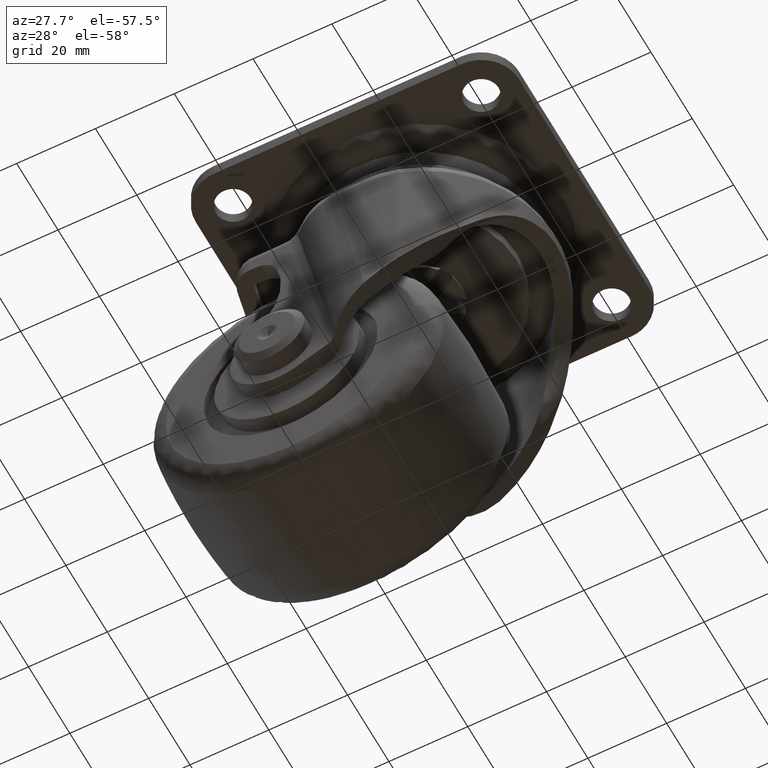
[diagram: clean part render]
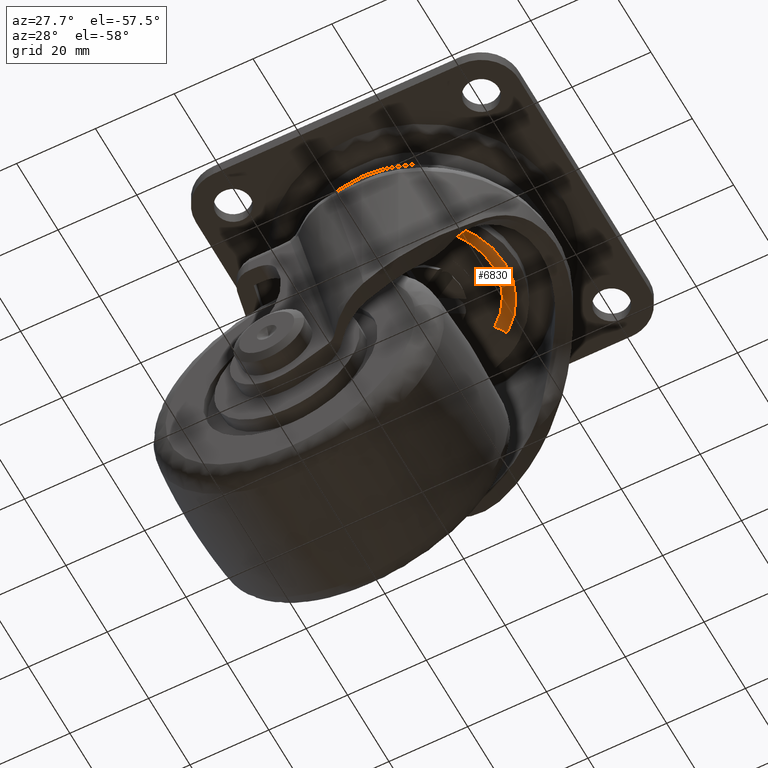
[diagram: same view with one face highlighted and labeled with its STEP entity id]
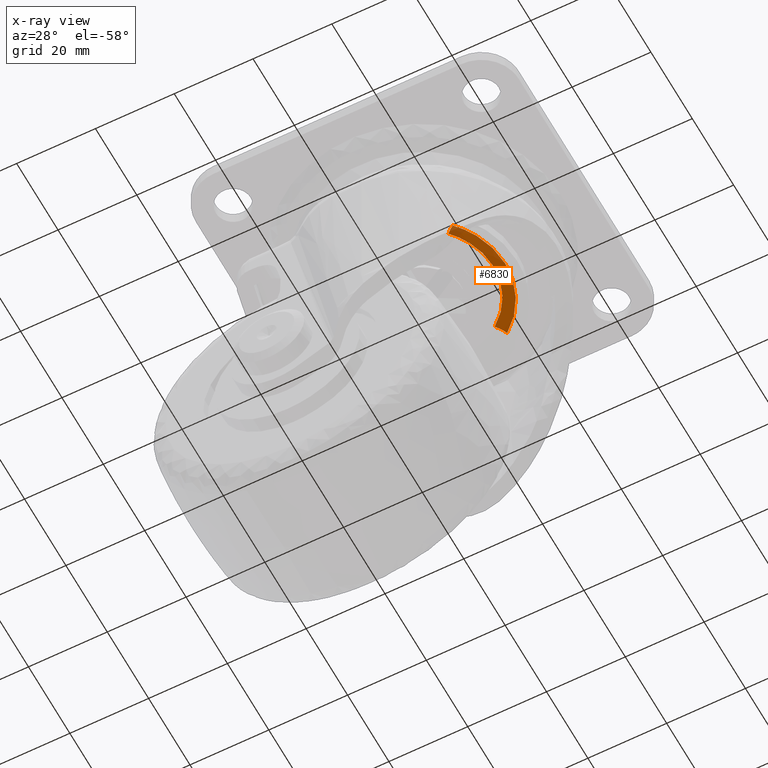
[diagram: x-ray of the same camera — body ghosted, the highlighted face saturated]
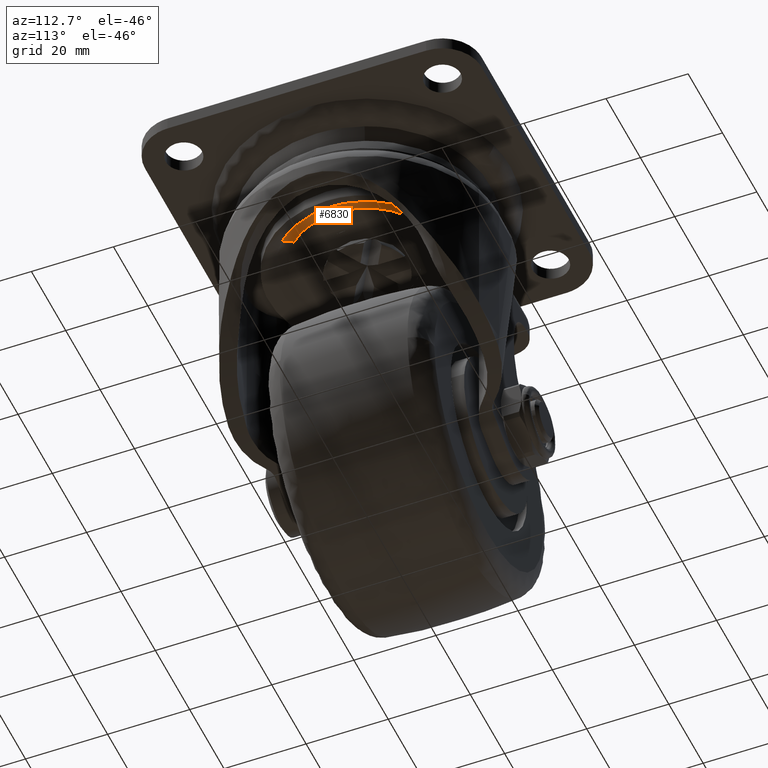
[diagram: same view with one face highlighted and labeled with its STEP entity id]
A machine part, auxiliary view. The second image highlights one B-rep face of the part: STEP entity #6830.
The next image is the same camera in x-ray: the body ghosted, the highlighted face saturated — about 7% of this face is hidden behind the body in this view.
A second angle (auxiliary view) of the same face is appended — the face is thin or edge-on in the first view.
In plain terms, the highlighted face is a freeform B-spline surface patch.
Its self-contained STEP definition (entity closure, byte-faithful):
#6565=CARTESIAN_POINT('',(21.359507030086711,-14.415624146861260,-29.763791709345991));
#6566=VERTEX_POINT('',#6565);
#6582=CARTESIAN_POINT('',(26.983688224116889,0.0,-30.857021788799411));
#6583=VERTEX_POINT('',#6582);
#6584=CARTESIAN_POINT('',(26.983688224116889,0.0,-30.857021788799411));
#6585=CARTESIAN_POINT('',(26.983688224116886,-8.346388030169882,-30.857021788799411));
#6586=CARTESIAN_POINT('',(21.359507030086707,-14.415624146861251,-29.763791709345991));
#6594=(BOUNDED_CURVE()B_SPLINE_CURVE(2,(#6584,#6585,#6586),.UNSPECIFIED.,.F.,.U.)B_SPLINE_CURVE_WITH_KNOTS((3,3),(0.500000000000000,0.620655485560328),.UNSPECIFIED.)CURVE()GEOMETRIC_REPRESENTATION_ITEM()RATIONAL_B_SPLINE_CURVE((1.0,0.858643305866942,0.853730296276499))REPRESENTATION_ITEM(''));
#6595=EDGE_CURVE('',#6583,#6566,#6594,.T.);
#6597=CARTESIAN_POINT('',(18.901498710792382,16.673802292498049,-29.286007105017500));
#6598=VERTEX_POINT('',#6597);
#6599=CARTESIAN_POINT('',(18.901498710792378,16.673802292498049,-29.286007105017493));
#6600=CARTESIAN_POINT('',(26.983689355922717,10.369729032021272,-30.857023914964039));
#6601=CARTESIAN_POINT('',(26.983688224116889,0.0,-30.857021788799411));
#6609=(BOUNDED_CURVE()B_SPLINE_CURVE(2,(#6599,#6600,#6601),.UNSPECIFIED.,.F.,.U.)B_SPLINE_CURVE_WITH_KNOTS((3,3),(0.355061816708075,0.500000000000000),.UNSPECIFIED.)CURVE()GEOMETRIC_REPRESENTATION_ITEM()RATIONAL_B_SPLINE_CURVE((0.857279284320494,0.830194355866616,1.0))REPRESENTATION_ITEM(''));
#6610=EDGE_CURVE('',#6598,#6583,#6609,.T.);
#6708=CARTESIAN_POINT('',(17.124882489129430,14.428205729148310,-27.921947387348620));
#6709=VERTEX_POINT('',#6708);
#6710=CARTESIAN_POINT('',(17.124882489129426,14.428205729148321,-27.921947387348613));
#6711=CARTESIAN_POINT('',(18.206218977879878,15.684433927178175,-28.132543304429515));
#6712=CARTESIAN_POINT('',(18.901498710792385,16.673802292498053,-29.286007105017493));
#6720=(BOUNDED_CURVE()B_SPLINE_CURVE(2,(#6710,#6711,#6712),.UNSPECIFIED.,.F.,.U.)B_SPLINE_CURVE_WITH_KNOTS((3,3),(-1.520056356611871,-0.496481029998137),.UNSPECIFIED.)CURVE()GEOMETRIC_REPRESENTATION_ITEM()RATIONAL_B_SPLINE_CURVE((0.933402537419413,0.884809061408551,0.931857302774554))REPRESENTATION_ITEM(''));
#6721=EDGE_CURVE('',#6709,#6598,#6720,.T.);
#6740=CARTESIAN_POINT('',(19.408888932525429,-12.356249269881950,-28.365913265888469));
#6741=VERTEX_POINT('',#6740);
#6757=CARTESIAN_POINT('',(19.408888932525425,-12.356249269881953,-28.365913265888469));
#6758=CARTESIAN_POINT('',(20.598570650805499,-13.500346423912719,-28.597163966945452));
#6759=CARTESIAN_POINT('',(21.359507030086707,-14.415624146861257,-29.763791709345995));
#6767=(BOUNDED_CURVE()B_SPLINE_CURVE(2,(#6757,#6758,#6759),.UNSPECIFIED.,.F.,.U.)B_SPLINE_CURVE_WITH_KNOTS((3,3),(-1.520056357029071,-0.496053787908828),.UNSPECIFIED.)CURVE()GEOMETRIC_REPRESENTATION_ITEM()RATIONAL_B_SPLINE_CURVE((0.893159930778479,0.846642099571772,0.891718915794607))REPRESENTATION_ITEM(''));
#6768=EDGE_CURVE('',#6741,#6566,#6767,.T.);
#6773=CARTESIAN_POINT('',(17.032039829456561,14.302054438248392,-27.906424459657874));
#6774=CARTESIAN_POINT('',(31.071325245189470,3.633863534694484,-30.635385098840711));
#6775=CARTESIAN_POINT('',(20.599139056051872,-10.668190903553905,-28.599798310048381));
#6776=CARTESIAN_POINT('',(19.992529580967709,-11.496648455656066,-28.481885372755649));
#6777=CARTESIAN_POINT('',(19.296077691995361,-12.248212419805714,-28.346508839277661));
#6778=CARTESIAN_POINT('',(18.124639918728054,15.779115950146760,-28.059687823255196));
#6779=CARTESIAN_POINT('',(33.613849066164732,4.009155069890568,-31.070485085632725));
#6780=CARTESIAN_POINT('',(22.060135517989664,-11.769960880256196,-28.824670674449788));
#6781=CARTESIAN_POINT('',(21.390877735120881,-12.683978361509451,-28.694580139722930));
#6782=CARTESIAN_POINT('',(20.622498957285703,-13.513160978976934,-28.545222435352468));
#6783=CARTESIAN_POINT('',(18.749552276632350,16.932805899635540,-29.354855522441625));
#6784=CARTESIAN_POINT('',(35.371254839757555,4.302284414062201,-32.585787205057116));
#6785=CARTESIAN_POINT('',(22.972791608399010,-12.630521485573336,-30.175770089313001));
#6786=CARTESIAN_POINT('',(22.254601047537321,-13.611367348410864,-30.036167986072901));
#6787=CARTESIAN_POINT('',(21.430042260873410,-14.501175647005571,-29.875889994218955));
#6795=(BOUNDED_SURFACE()B_SPLINE_SURFACE(2,2,((#6773,#6778,#6783),(#6774,#6779,#6784),(#6775,#6780,#6785),(#6776,#6781,#6786),(#6777,#6782,#6787)),.UNSPECIFIED.,.F.,.F.,.U.)B_SPLINE_SURFACE_WITH_KNOTS((3,2,3),(3,3),(0.0,35.000432827407643,37.800464783279139),(0.0,3.569790584839268),.UNSPECIFIED.)GEOMETRIC_REPRESENTATION_ITEM()RATIONAL_B_SPLINE_SURFACE(((0.938497914235459,0.879768541939251,0.936841686969463),(0.663618239285324,0.622090301879846,0.662447109754352),(0.938497914235459,0.879768541939251,0.936841686969463),(0.916507561211103,0.859154302393788,0.914890141726899),(0.898035661315183,0.841838338030116,0.896450840373605)))REPRESENTATION_ITEM('')SURFACE());
#6796=ORIENTED_EDGE('',*,*,#6595,.T.);
#6797=ORIENTED_EDGE('',*,*,#6768,.F.);
#6798=CARTESIAN_POINT('',(24.229615669150430,0.0,-29.302967619222120));
#6799=VERTEX_POINT('',#6798);
#6800=CARTESIAN_POINT('',(24.229615669150430,0.0,-29.302967619222120));
#6801=CARTESIAN_POINT('',(24.229615669150434,-7.154046883022350,-29.302967619222120));
#6802=CARTESIAN_POINT('',(19.408888932525429,-12.356249269881955,-28.365913265888480));
#6810=(BOUNDED_CURVE()B_SPLINE_CURVE(2,(#6800,#6801,#6802),.UNSPECIFIED.,.F.,.U.)B_SPLINE_CURVE_WITH_KNOTS((3,3),(0.0,0.120655485560612),.UNSPECIFIED.)CURVE()GEOMETRIC_REPRESENTATION_ITEM()RATIONAL_B_SPLINE_CURVE((1.0,0.858643305866609,0.853730296276476))REPRESENTATION_ITEM(''));
#6811=EDGE_CURVE('',#6799,#6741,#6810,.T.);
#6812=ORIENTED_EDGE('',*,*,#6811,.F.);
#6813=CARTESIAN_POINT('',(17.124882489129430,14.428205729148310,-27.921947387348620));
#6814=CARTESIAN_POINT('',(24.229615669150437,9.029451613440067,-29.302967619222116));
#6815=CARTESIAN_POINT('',(24.229615669150430,0.0,-29.302967619222120));
#6823=(BOUNDED_CURVE()B_SPLINE_CURVE(2,(#6813,#6814,#6815),.UNSPECIFIED.,.F.,.U.)B_SPLINE_CURVE_WITH_KNOTS((3,3),(0.853156604497506,1.0),.UNSPECIFIED.)CURVE()GEOMETRIC_REPRESENTATION_ITEM()RATIONAL_B_SPLINE_CURVE((0.858025367927901,0.827962260919111,1.0))REPRESENTATION_ITEM(''));
#6824=EDGE_CURVE('',#6709,#6799,#6823,.T.);
#6825=ORIENTED_EDGE('',*,*,#6824,.F.);
#6826=ORIENTED_EDGE('',*,*,#6721,.T.);
#6827=ORIENTED_EDGE('',*,*,#6610,.T.);
#6828=EDGE_LOOP('',(#6796,#6797,#6812,#6825,#6826,#6827));
#6829=FACE_OUTER_BOUND('',#6828,.T.);
#6830=ADVANCED_FACE('',(#6829),#6795,.F.);